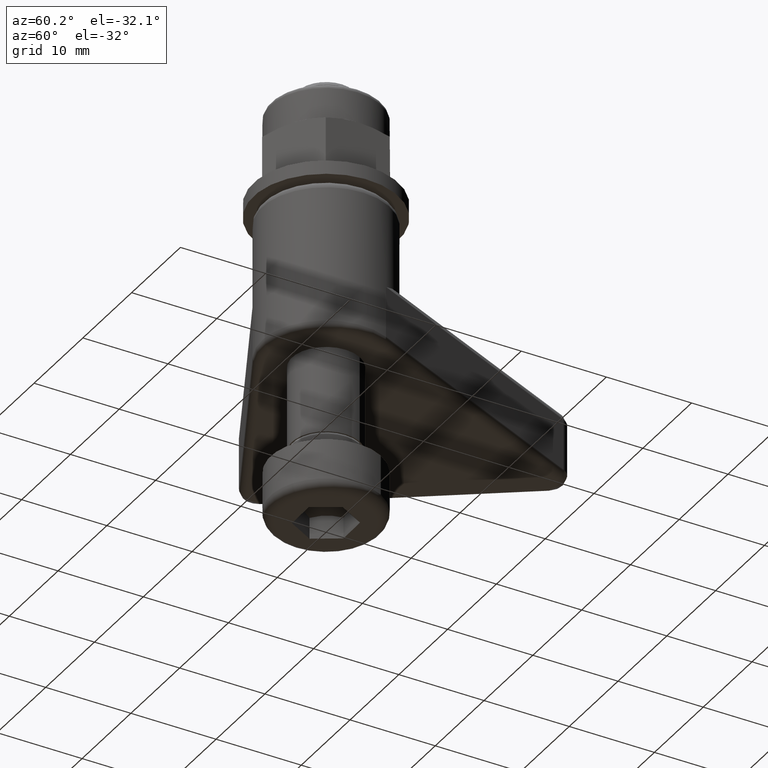
[diagram: clean part render]
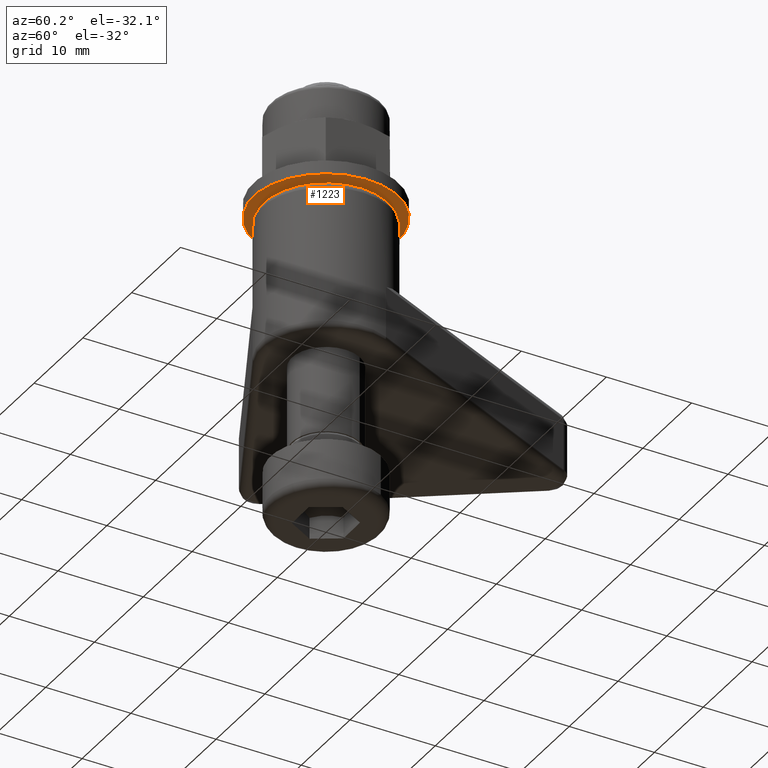
[diagram: same view with one face highlighted and labeled with its STEP entity id]
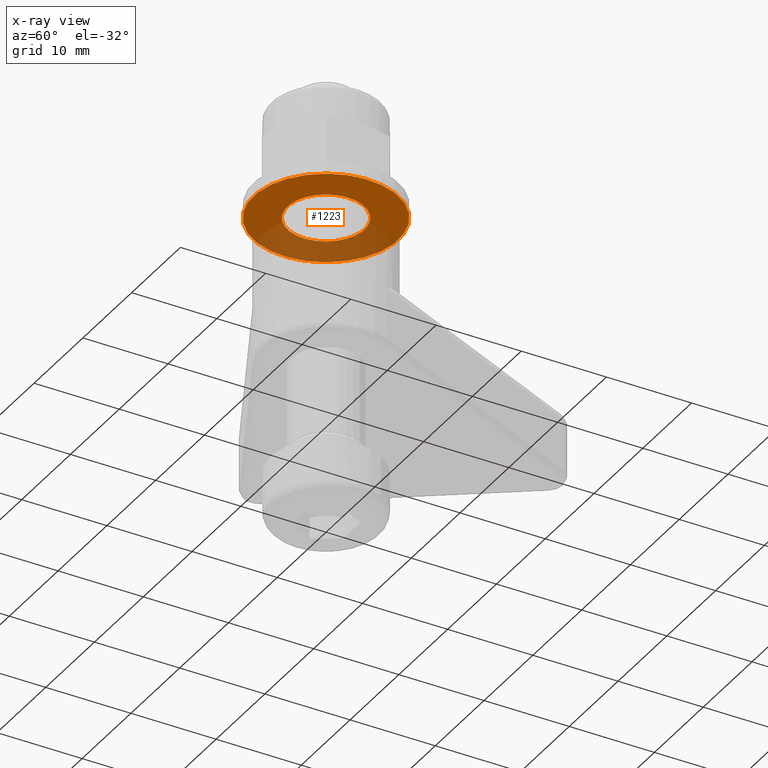
[diagram: x-ray of the same camera — body ghosted, the highlighted face saturated]
A machine part, auxiliary view. The second image highlights one B-rep face of the part: STEP entity #1223.
The next image is the same camera in x-ray: the body ghosted, the highlighted face saturated — about 37% of this face is hidden behind the body in this view.
In plain terms, the highlighted planar face has unit normal (0, -0, -1).
Its self-contained STEP definition (entity closure, byte-faithful):
#255=FACE_BOUND('',#372,.T.);
#290=FACE_OUTER_BOUND('',#371,.T.);
#371=EDGE_LOOP('',(#918));
#372=EDGE_LOOP('',(#919));
#449=CIRCLE('',#1447,4.5);
#452=CIRCLE('',#1451,8.5);
#537=VERTEX_POINT('',#2109);
#540=VERTEX_POINT('',#2117);
#674=EDGE_CURVE('',#537,#537,#449,.T.);
#679=EDGE_CURVE('',#540,#540,#452,.T.);
#918=ORIENTED_EDGE('',*,*,#679,.T.);
#919=ORIENTED_EDGE('',*,*,#674,.T.);
#1166=PLANE('',#1453);
#1223=ADVANCED_FACE('',(#290,#255),#1166,.T.);
#1447=AXIS2_PLACEMENT_3D('',#2110,#1668,#1669);
#1451=AXIS2_PLACEMENT_3D('',#2119,#1678,#1679);
#1453=AXIS2_PLACEMENT_3D('',#2121,#1682,#1683);
#1668=DIRECTION('center_axis',(0.,0.,1.));
#1669=DIRECTION('ref_axis',(-1.,0.,0.));
#1678=DIRECTION('center_axis',(0.,0.,-1.));
#1679=DIRECTION('ref_axis',(-1.,0.,0.));
#1682=DIRECTION('center_axis',(0.,0.,-1.));
#1683=DIRECTION('ref_axis',(-1.,0.,0.));
#2109=CARTESIAN_POINT('',(4.5,5.51091059616309E-16,0.));
#2110=CARTESIAN_POINT('Origin',(0.,0.,0.));
#2117=CARTESIAN_POINT('',(8.5,1.04094977927525E-15,0.));
#2119=CARTESIAN_POINT('Origin',(0.,0.,0.));
#2121=CARTESIAN_POINT('Origin',(0.,0.,0.));